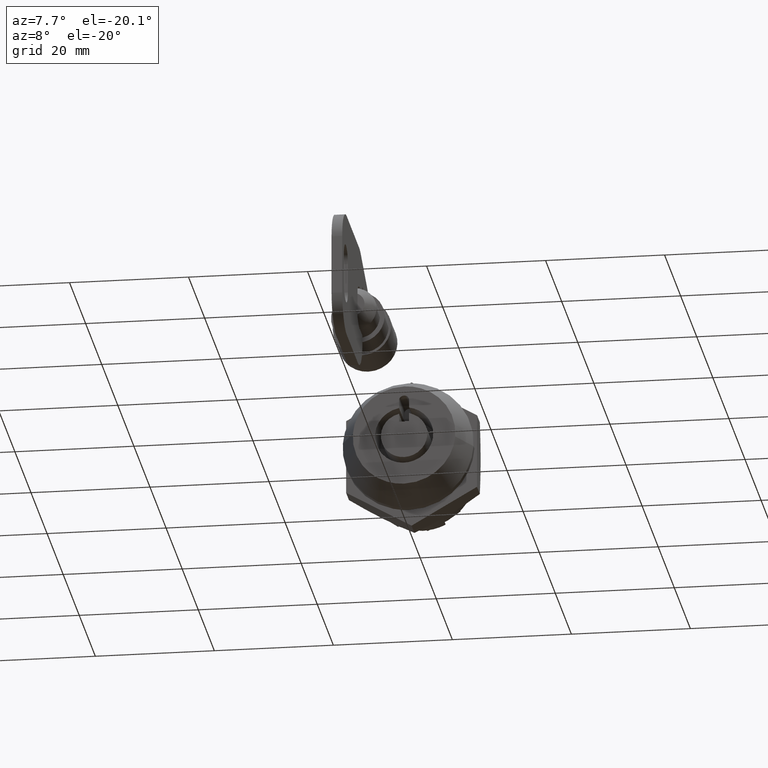
[diagram: clean part render]
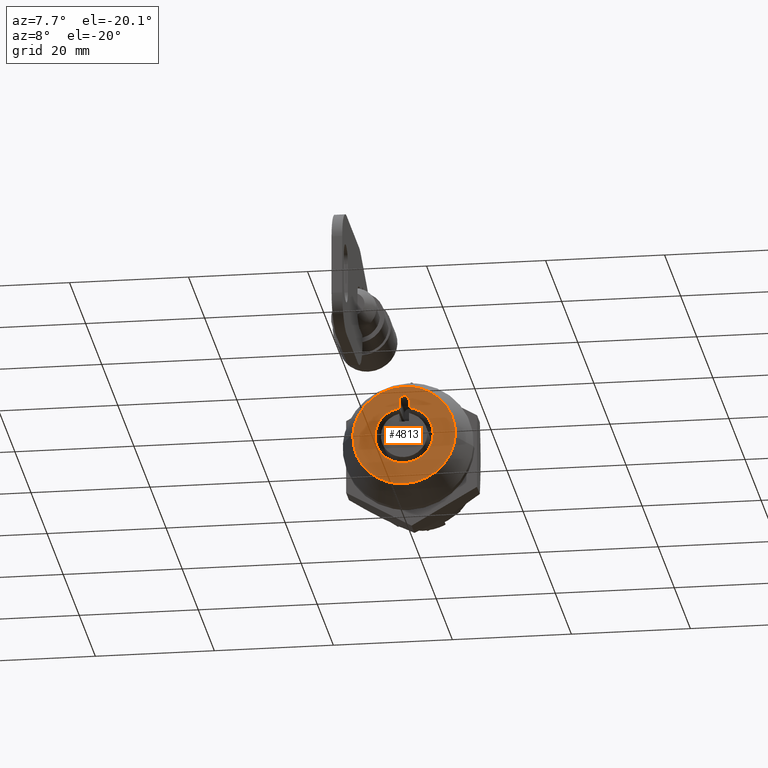
[diagram: same view with one face highlighted and labeled with its STEP entity id]
A machine part, auxiliary view. The second image highlights one B-rep face of the part: STEP entity #4813.
In plain terms, the highlighted face is a freeform B-spline surface patch.
Its self-contained STEP definition (entity closure, byte-faithful):
#3153=CARTESIAN_POINT('',(7.077075E-012,8.595216883393791,0.676458239289243));
#3154=VERTEX_POINT('',#3153);
#3160=CARTESIAN_POINT('',(0.0,0.0,8.621794999999890));
#3161=VERTEX_POINT('',#3160);
#3162=CARTESIAN_POINT('',(0.0,0.0,8.621794999999890));
#3163=CARTESIAN_POINT('',(0.0,7.969905318955227,8.621794999999890));
#3164=CARTESIAN_POINT('',(7.077075E-012,8.595216883393791,0.676458239289243));
#3172=(BOUNDED_CURVE()B_SPLINE_CURVE(2,(#3162,#3163,#3164),.UNSPECIFIED.,.F.,.U.)B_SPLINE_CURVE_WITH_KNOTS((3,3),(0.0,0.236331300631246),.UNSPECIFIED.)CURVE()GEOMETRIC_REPRESENTATION_ITEM()RATIONAL_B_SPLINE_CURVE((1.0,0.723120658606979,0.969723356168641))REPRESENTATION_ITEM(''));
#3173=EDGE_CURVE('',#3161,#3154,#3172,.T.);
#3175=CARTESIAN_POINT('',(7.076485E-012,-8.595216883393789,-0.676458239289243));
#3176=VERTEX_POINT('',#3175);
#3177=CARTESIAN_POINT('',(7.076485E-012,-8.595216883393791,-0.676458239289243));
#3178=CARTESIAN_POINT('',(0.0,-8.621794999999890,-0.338751248186499));
#3179=CARTESIAN_POINT('',(0.0,-8.621794999999890,0.0));
#3180=CARTESIAN_POINT('',(0.0,-8.621794999999890,8.621794999999890));
#3181=CARTESIAN_POINT('',(0.0,0.0,8.621794999999890));
#3189=(BOUNDED_CURVE()B_SPLINE_CURVE(2,(#3177,#3178,#3179,#3180,#3181),.UNSPECIFIED.,.F.,.U.)B_SPLINE_CURVE_WITH_KNOTS((3,2,3),(0.736331300631246,0.750000000000000,1.0),.UNSPECIFIED.)CURVE()GEOMETRIC_REPRESENTATION_ITEM()RATIONAL_B_SPLINE_CURVE((0.969723356168641,0.983986122579569,1.0,0.707106781186547,1.0))REPRESENTATION_ITEM(''));
#3190=EDGE_CURVE('',#3176,#3161,#3189,.T.);
#3227=CARTESIAN_POINT('',(0.0,0.0,-8.621794999999890));
#3228=VERTEX_POINT('',#3227);
#3229=CARTESIAN_POINT('',(0.0,0.0,-8.621794999999890));
#3230=CARTESIAN_POINT('',(0.0,-7.969905318955199,-8.621794999999890));
#3231=CARTESIAN_POINT('',(7.076485E-012,-8.595216883393789,-0.676458239289243));
#3239=(BOUNDED_CURVE()B_SPLINE_CURVE(2,(#3229,#3230,#3231),.UNSPECIFIED.,.F.,.U.)B_SPLINE_CURVE_WITH_KNOTS((3,3),(0.500000000000000,0.736331300631245),.UNSPECIFIED.)CURVE()GEOMETRIC_REPRESENTATION_ITEM()RATIONAL_B_SPLINE_CURVE((1.0,0.723120658606980,0.969723356168640))REPRESENTATION_ITEM(''));
#3240=EDGE_CURVE('',#3228,#3176,#3239,.T.);
#3242=CARTESIAN_POINT('',(7.077075E-012,8.595216883393791,0.676458239289243));
#3243=CARTESIAN_POINT('',(0.0,8.621794999999890,0.338751248186499));
#3244=CARTESIAN_POINT('',(0.0,8.621794999999890,0.0));
#3245=CARTESIAN_POINT('',(0.0,8.621794999999890,-8.621794999999890));
#3246=CARTESIAN_POINT('',(0.0,0.0,-8.621794999999890));
#3254=(BOUNDED_CURVE()B_SPLINE_CURVE(2,(#3242,#3243,#3244,#3245,#3246),.UNSPECIFIED.,.F.,.U.)B_SPLINE_CURVE_WITH_KNOTS((3,2,3),(0.236331300631246,0.250000000000000,0.500000000000000),.UNSPECIFIED.)CURVE()GEOMETRIC_REPRESENTATION_ITEM()RATIONAL_B_SPLINE_CURVE((0.969723356168641,0.983986122579569,1.0,0.707106781186547,1.0))REPRESENTATION_ITEM(''));
#3255=EDGE_CURVE('',#3154,#3228,#3254,.T.);
#4545=CARTESIAN_POINT('',(0.0,0.850000000000000,4.825712382643619));
#4546=VERTEX_POINT('',#4545);
#4547=CARTESIAN_POINT('',(0.0,-0.850000000000015,4.825712382643619));
#4548=VERTEX_POINT('',#4547);
#4549=CARTESIAN_POINT('',(0.0,0.849999999999997,4.825712382643624));
#4550=CARTESIAN_POINT('',(0.0,5.272353634873856,4.046759910639167));
#4551=CARTESIAN_POINT('',(0.0,4.881392766155668,-0.426620044680411));
#4552=CARTESIAN_POINT('',(0.0,4.490431897437479,-4.900000000000000));
#4553=CARTESIAN_POINT('',(0.0,0.0,-4.900000000000000));
#4554=CARTESIAN_POINT('',(0.0,-4.490431897437461,-4.900000000000000));
#4555=CARTESIAN_POINT('',(0.0,-4.881392766155666,-0.426620044680431));
#4556=CARTESIAN_POINT('',(0.0,-5.272353634873871,4.046759910639147));
#4557=CARTESIAN_POINT('',(0.0,-0.850000000000016,4.825712382643621));
#4565=(BOUNDED_CURVE()B_SPLINE_CURVE(2,(#4549,#4550,#4551,#4552,#4553,#4554,#4555,#4556,#4557),.UNSPECIFIED.,.F.,.U.)B_SPLINE_CURVE_WITH_KNOTS((3,2,2,2,3),(0.0,0.250000000000000,0.500000000000000,0.750000000000000,1.0),.UNSPECIFIED.)CURVE()GEOMETRIC_REPRESENTATION_ITEM()RATIONAL_B_SPLINE_CURVE((1.0,0.737246673522811,1.0,0.737246673522811,1.0,0.737246673522811,1.0,0.737246673522811,1.0))REPRESENTATION_ITEM(''));
#4566=EDGE_CURVE('',#4546,#4548,#4565,.T.);
#4672=CARTESIAN_POINT('',(0.0,0.850000000000028,6.149999999999800));
#4673=VERTEX_POINT('',#4672);
#4674=CARTESIAN_POINT('',(0.0,0.850000000000028,6.149999999999800));
#4675=CARTESIAN_POINT('',(0.0,0.850000000000000,4.825712382643619));
#4676=QUASI_UNIFORM_CURVE('',1,(#4674,#4675),.UNSPECIFIED.,.F.,.U.);
#4677=EDGE_CURVE('',#4673,#4546,#4676,.T.);
#4707=CARTESIAN_POINT('',(0.0,-0.849999999999972,6.149999999999790));
#4708=VERTEX_POINT('',#4707);
#4709=CARTESIAN_POINT('',(0.0,-0.849999999999972,6.149999999999790));
#4710=CARTESIAN_POINT('',(0.0,-0.849999999999972,6.999999999999791));
#4711=CARTESIAN_POINT('',(0.0,2.842171E-014,6.999999999999790));
#4712=CARTESIAN_POINT('',(0.0,0.850000000000028,6.999999999999791));
#4713=CARTESIAN_POINT('',(0.0,0.850000000000028,6.149999999999790));
#4721=(BOUNDED_CURVE()B_SPLINE_CURVE(2,(#4709,#4710,#4711,#4712,#4713),.UNSPECIFIED.,.F.,.U.)B_SPLINE_CURVE_WITH_KNOTS((3,2,3),(0.0,0.500000000000000,1.0),.UNSPECIFIED.)CURVE()GEOMETRIC_REPRESENTATION_ITEM()RATIONAL_B_SPLINE_CURVE((1.0,0.707106781186548,1.0,0.707106781186548,1.0))REPRESENTATION_ITEM(''));
#4722=EDGE_CURVE('',#4708,#4673,#4721,.T.);
#4739=CARTESIAN_POINT('',(0.0,-0.850000000000015,4.825712382643619));
#4740=CARTESIAN_POINT('',(0.0,-0.849999999999972,6.149999999999790));
#4741=QUASI_UNIFORM_CURVE('',1,(#4739,#4740),.UNSPECIFIED.,.F.,.U.);
#4742=EDGE_CURVE('',#4548,#4708,#4741,.T.);
#4796=CARTESIAN_POINT('',(0.0,-9.480480155739247,-9.483111901731268));
#4797=CARTESIAN_POINT('',(0.0,-9.480480155739247,9.483111439222144));
#4798=CARTESIAN_POINT('',(0.0,9.480479693230119,-9.483111901731268));
#4799=CARTESIAN_POINT('',(0.0,9.480479693230119,9.483111439222144));
#4800=B_SPLINE_SURFACE_WITH_KNOTS('',1,1,((#4796,#4798),(#4797,#4799)),.UNSPECIFIED.,.F.,.F.,.U.,(2,2),(2,2),(0.0,18.966223340953409),(0.0,18.960959848969370),.UNSPECIFIED.);
#4801=ORIENTED_EDGE('',*,*,#3173,.T.);
#4802=ORIENTED_EDGE('',*,*,#3255,.T.);
#4803=ORIENTED_EDGE('',*,*,#3240,.T.);
#4804=ORIENTED_EDGE('',*,*,#3190,.T.);
#4805=EDGE_LOOP('',(#4801,#4802,#4803,#4804));
#4806=FACE_OUTER_BOUND('',#4805,.T.);
#4807=ORIENTED_EDGE('',*,*,#4742,.F.);
#4808=ORIENTED_EDGE('',*,*,#4566,.F.);
#4809=ORIENTED_EDGE('',*,*,#4677,.F.);
#4810=ORIENTED_EDGE('',*,*,#4722,.F.);
#4811=EDGE_LOOP('',(#4807,#4808,#4809,#4810));
#4812=FACE_BOUND('',#4811,.T.);
#4813=ADVANCED_FACE('',(#4806,#4812),#4800,.T.);